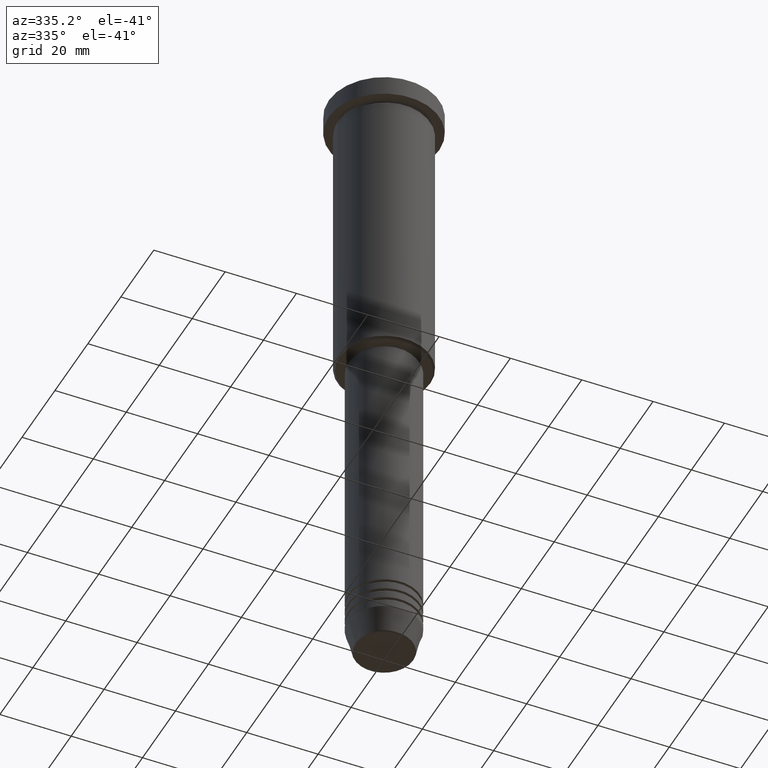
[diagram: clean part render]
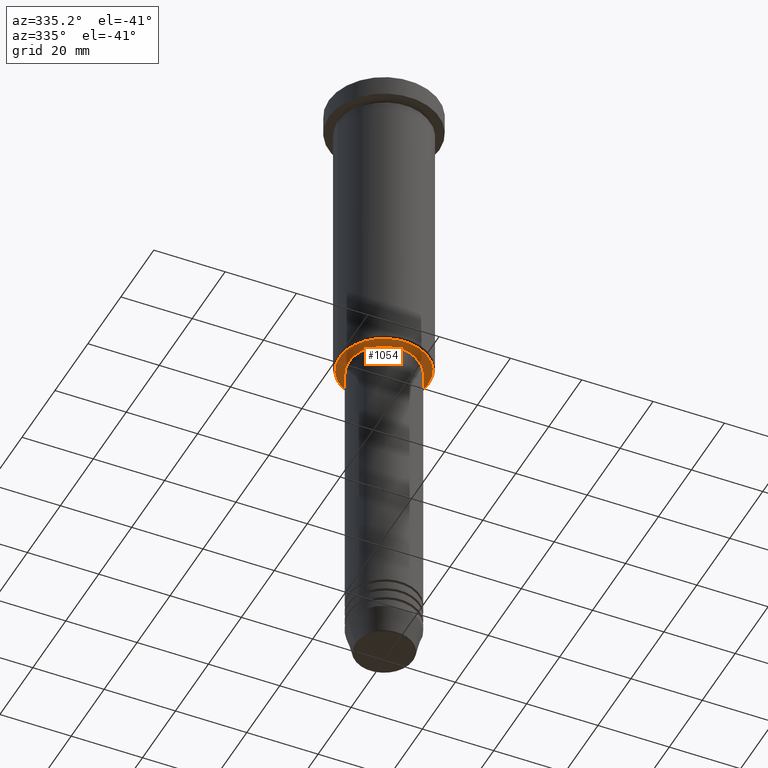
[diagram: same view with one face highlighted and labeled with its STEP entity id]
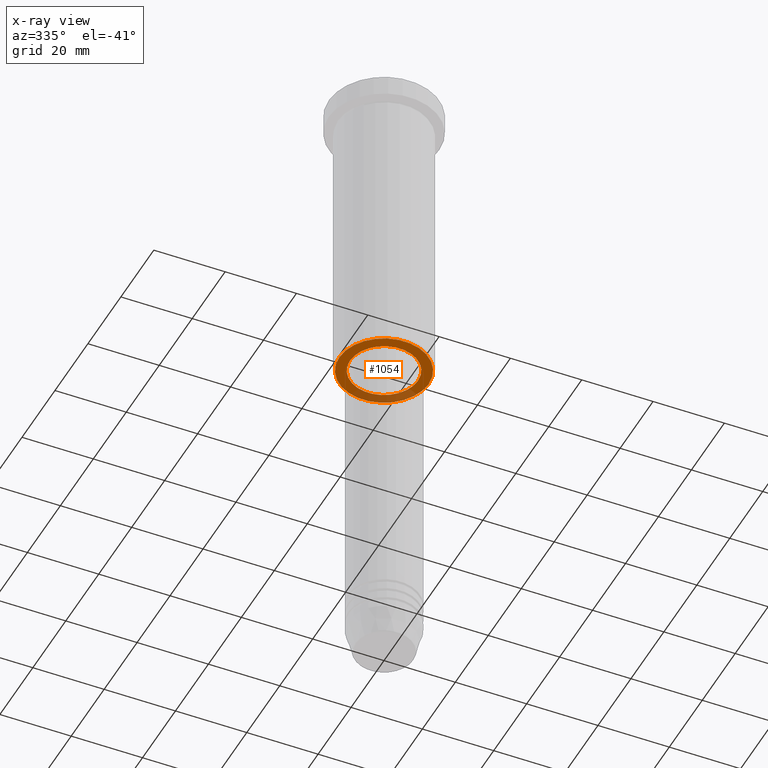
[diagram: x-ray of the same camera — body ghosted, the highlighted face saturated]
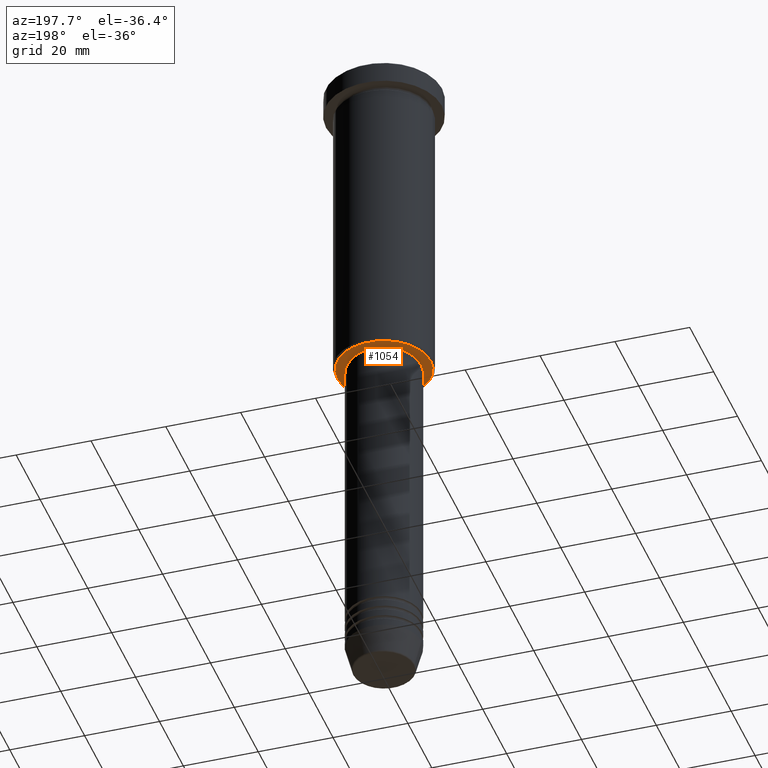
[diagram: same view with one face highlighted and labeled with its STEP entity id]
A machine part, auxiliary view. The second image highlights one B-rep face of the part: STEP entity #1054.
The next image is the same camera in x-ray: the body ghosted, the highlighted face saturated — about 23% of this face is hidden behind the body in this view.
A second angle (auxiliary view) of the same face is appended — the face is thin or edge-on in the first view.
In plain terms, the highlighted planar face has unit normal (0, 0, -1).
Its self-contained STEP definition (entity closure, byte-faithful):
#78 = EDGE_CURVE ( 'NONE', #661, #543, #615, .T. ) ;
#83 = EDGE_CURVE ( 'NONE', #295, #686, #102, .T. ) ;
#102 = CIRCLE ( 'NONE', #764, 9.500000000000000000 ) ;
#103 = CARTESIAN_POINT ( 'NONE',  ( 0.000000000000000000, 0.000000000000000000, -86.00000000000000000 ) ) ;
#107 = FACE_BOUND ( 'NONE', #1072, .T. ) ;
#116 = EDGE_CURVE ( 'NONE', #686, #295, #1004, .T. ) ;
#130 = DIRECTION ( 'NONE',  ( 0.000000000000000000, 0.000000000000000000, -1.000000000000000000 ) ) ;
#141 = DIRECTION ( 'NONE',  ( 0.000000000000000000, 0.000000000000000000, -1.000000000000000000 ) ) ;
#270 = CARTESIAN_POINT ( 'NONE',  ( 12.50000000000002487, 0.000000000000000000, -86.00000000000000000 ) ) ;
#295 = VERTEX_POINT ( 'NONE', #441 ) ;
#310 = AXIS2_PLACEMENT_3D ( 'NONE', #336, #141, #612 ) ;
#336 = CARTESIAN_POINT ( 'NONE',  ( 0.000000000000000000, 0.000000000000000000, -86.00000000000000000 ) ) ;
#365 = DIRECTION ( 'NONE',  ( -1.000000000000000000, 0.000000000000000000, 0.000000000000000000 ) ) ;
#368 = AXIS2_PLACEMENT_3D ( 'NONE', #841, #130, #1124 ) ;
#373 = CARTESIAN_POINT ( 'NONE',  ( 0.000000000000000000, 0.000000000000000000, -86.00000000000000000 ) ) ;
#390 = ORIENTED_EDGE ( 'NONE', *, *, #78, .T. ) ;
#441 = CARTESIAN_POINT ( 'NONE',  ( -9.500000000000000000, 1.163414459189985485E-15, -86.00000000000000000 ) ) ;
#470 = PLANE ( 'NONE',  #368 ) ;
#507 = CIRCLE ( 'NONE', #310, 12.50000000000002487 ) ;
#539 = EDGE_LOOP ( 'NONE', ( #584, #390 ) ) ;
#543 = VERTEX_POINT ( 'NONE', #270 ) ;
#562 = FACE_OUTER_BOUND ( 'NONE', #539, .T. ) ;
#584 = ORIENTED_EDGE ( 'NONE', *, *, #760, .T. ) ;
#612 = DIRECTION ( 'NONE',  ( -1.000000000000000000, 0.000000000000000000, 0.000000000000000000 ) ) ;
#615 = CIRCLE ( 'NONE', #959, 12.50000000000002487 ) ;
#628 = ORIENTED_EDGE ( 'NONE', *, *, #83, .T. ) ;
#656 = DIRECTION ( 'NONE',  ( 0.000000000000000000, 0.000000000000000000, -1.000000000000000000 ) ) ;
#661 = VERTEX_POINT ( 'NONE', #676 ) ;
#676 = CARTESIAN_POINT ( 'NONE',  ( -12.50000000000002487, 1.561424668912876886E-15, -86.00000000000000000 ) ) ;
#686 = VERTEX_POINT ( 'NONE', #1125 ) ;
#697 = ORIENTED_EDGE ( 'NONE', *, *, #116, .T. ) ;
#737 = CARTESIAN_POINT ( 'NONE',  ( 0.000000000000000000, 0.000000000000000000, -86.00000000000000000 ) ) ;
#760 = EDGE_CURVE ( 'NONE', #543, #661, #507, .T. ) ;
#764 = AXIS2_PLACEMENT_3D ( 'NONE', #373, #1108, #984 ) ;
#820 = DIRECTION ( 'NONE',  ( 1.000000000000000000, 0.000000000000000000, 0.000000000000000000 ) ) ;
#841 = CARTESIAN_POINT ( 'NONE',  ( 0.000000000000000000, 13.00000000000000000, -86.00000000000000000 ) ) ;
#912 = DIRECTION ( 'NONE',  ( -0.000000000000000000, -0.000000000000000000, 1.000000000000000000 ) ) ;
#959 = AXIS2_PLACEMENT_3D ( 'NONE', #103, #656, #365 ) ;
#984 = DIRECTION ( 'NONE',  ( 1.000000000000000000, 0.000000000000000000, 0.000000000000000000 ) ) ;
#1004 = CIRCLE ( 'NONE', #1062, 9.500000000000000000 ) ;
#1054 = ADVANCED_FACE ( 'NONE', ( #562, #107 ), #470, .T. ) ;
#1062 = AXIS2_PLACEMENT_3D ( 'NONE', #737, #912, #820 ) ;
#1072 = EDGE_LOOP ( 'NONE', ( #697, #628 ) ) ;
#1108 = DIRECTION ( 'NONE',  ( -0.000000000000000000, -0.000000000000000000, 1.000000000000000000 ) ) ;
#1124 = DIRECTION ( 'NONE',  ( -1.000000000000000000, 0.000000000000000000, -0.000000000000000000 ) ) ;
#1125 = CARTESIAN_POINT ( 'NONE',  ( 9.500000000000000000, 0.000000000000000000, -86.00000000000000000 ) ) ;